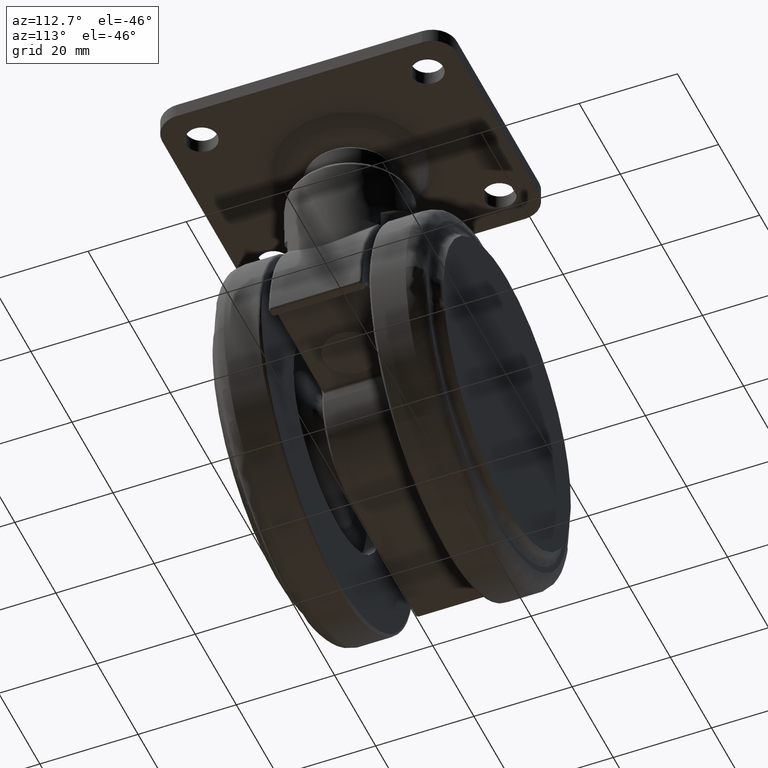
[diagram: clean part render]
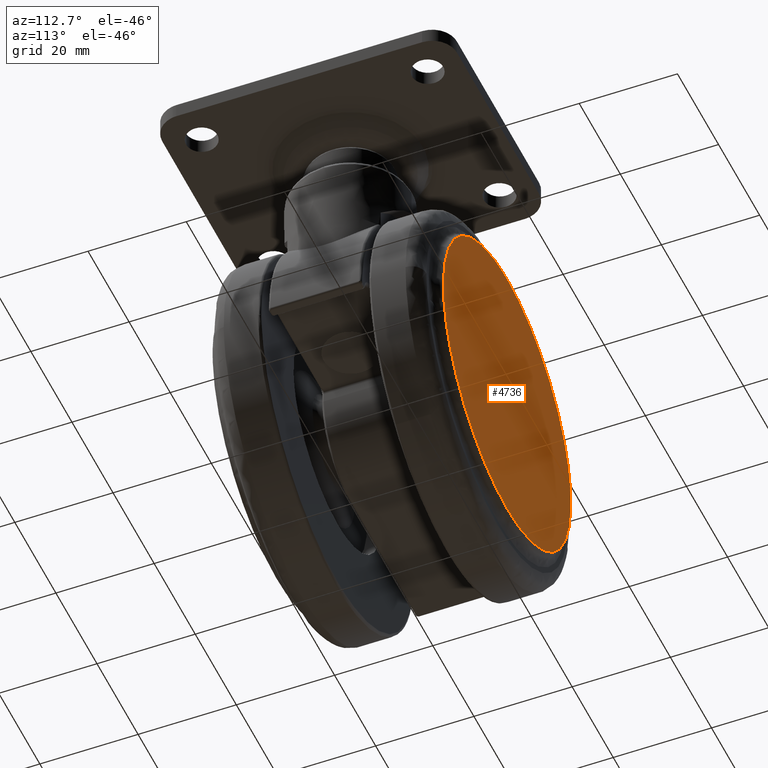
[diagram: same view with one face highlighted and labeled with its STEP entity id]
A machine part, auxiliary view. The second image highlights one B-rep face of the part: STEP entity #4736.
In plain terms, the highlighted face is a freeform B-spline surface patch.
Its self-contained STEP definition (entity closure, byte-faithful):
#4596=CARTESIAN_POINT('',(-50.648204086884860,23.499999999828798,-35.843006737218879));
#4597=VERTEX_POINT('',#4596);
#4611=CARTESIAN_POINT('',(-20.0,23.500000000000021,-71.500000000000185));
#4612=VERTEX_POINT('',#4611);
#4613=CARTESIAN_POINT('',(-50.648204086884860,23.499999999828798,-35.843006737218879));
#4614=CARTESIAN_POINT('',(-51.000000000014424,23.499999999834358,-38.158215786094125));
#4615=CARTESIAN_POINT('',(-51.000000000013870,23.499999999840821,-40.499999999997897));
#4616=CARTESIAN_POINT('',(-51.000000000006409,23.499999999926438,-71.499999999999133));
#4617=CARTESIAN_POINT('',(-20.0,23.500000000000021,-71.500000000000185));
#4625=(BOUNDED_CURVE()B_SPLINE_CURVE(2,(#4613,#4614,#4615,#4616,#4617),.UNSPECIFIED.,.F.,.U.)B_SPLINE_CURVE_WITH_KNOTS((3,2,3),(0.724102415376342,0.750000000000000,1.0),.UNSPECIFIED.)CURVE()GEOMETRIC_REPRESENTATION_ITEM()RATIONAL_B_SPLINE_CURVE((0.945604234434206,0.969659092320332,1.0,0.707106781186548,1.0))REPRESENTATION_ITEM(''));
#4626=EDGE_CURVE('',#4597,#4612,#4625,.T.);
#4628=CARTESIAN_POINT('',(10.648204086884849,23.499999999828798,-45.156993262781107));
#4629=VERTEX_POINT('',#4628);
#4630=CARTESIAN_POINT('',(-20.0,23.500000000000021,-71.500000000000185));
#4631=CARTESIAN_POINT('',(6.645385371991139,23.499999999914404,-71.500000000001222));
#4632=CARTESIAN_POINT('',(10.648204086884849,23.499999999828798,-45.156993262781114));
#4640=(BOUNDED_CURVE()B_SPLINE_CURVE(2,(#4630,#4631,#4632),.UNSPECIFIED.,.F.,.U.)B_SPLINE_CURVE_WITH_KNOTS((3,3),(0.0,0.224102415376342),.UNSPECIFIED.)CURVE()GEOMETRIC_REPRESENTATION_ITEM()RATIONAL_B_SPLINE_CURVE((1.0,0.737447688866216,0.945604234434206))REPRESENTATION_ITEM(''));
#4641=EDGE_CURVE('',#4612,#4629,#4640,.T.);
#4690=CARTESIAN_POINT('',(-20.0,23.500000000000000,-9.500000000000002));
#4691=VERTEX_POINT('',#4690);
#4692=CARTESIAN_POINT('',(10.648204086884849,23.499999999828798,-45.156993262781114));
#4693=CARTESIAN_POINT('',(11.000000000014410,23.499999999834348,-42.841784213905868));
#4694=CARTESIAN_POINT('',(11.000000000013850,23.499999999840821,-40.500000000002110));
#4695=CARTESIAN_POINT('',(11.000000000006400,23.499999999926420,-9.500000000000979));
#4696=CARTESIAN_POINT('',(-20.0,23.500000000000000,-9.500000000000002));
#4704=(BOUNDED_CURVE()B_SPLINE_CURVE(2,(#4692,#4693,#4694,#4695,#4696),.UNSPECIFIED.,.F.,.U.)B_SPLINE_CURVE_WITH_KNOTS((3,2,3),(0.224102415376342,0.250000000000000,0.500000000000000),.UNSPECIFIED.)CURVE()GEOMETRIC_REPRESENTATION_ITEM()RATIONAL_B_SPLINE_CURVE((0.945604234434206,0.969659092320332,1.0,0.707106781186548,1.0))REPRESENTATION_ITEM(''));
#4705=EDGE_CURVE('',#4629,#4691,#4704,.T.);
#4707=CARTESIAN_POINT('',(-20.0,23.500000000000000,-9.500000000000002));
#4708=CARTESIAN_POINT('',(-46.645385371991154,23.499999999914404,-9.499999999998869));
#4709=CARTESIAN_POINT('',(-50.648204086884860,23.499999999828798,-35.843006737218879));
#4717=(BOUNDED_CURVE()B_SPLINE_CURVE(2,(#4707,#4708,#4709),.UNSPECIFIED.,.F.,.U.)B_SPLINE_CURVE_WITH_KNOTS((3,3),(0.500000000000000,0.724102415376342),.UNSPECIFIED.)CURVE()GEOMETRIC_REPRESENTATION_ITEM()RATIONAL_B_SPLINE_CURVE((1.0,0.737447688866216,0.945604234434206))REPRESENTATION_ITEM(''));
#4718=EDGE_CURVE('',#4691,#4597,#4717,.T.);
#4725=CARTESIAN_POINT('',(14.089120613112010,23.500000000000000,-6.403100120168022));
#4726=CARTESIAN_POINT('',(14.089120613112010,23.500000000000000,-74.596901542801746));
#4727=CARTESIAN_POINT('',(-54.089122829898983,23.500000000000000,-6.403100120168022));
#4728=CARTESIAN_POINT('',(-54.089122829898983,23.500000000000000,-74.596901542801746));
#4729=B_SPLINE_SURFACE_WITH_KNOTS('',1,1,((#4725,#4727),(#4726,#4728)),.UNSPECIFIED.,.F.,.F.,.U.,(2,2),(2,2),(0.0,68.193801422633726),(0.0,68.178243443010984),.UNSPECIFIED.);
#4730=ORIENTED_EDGE('',*,*,#4626,.F.);
#4731=ORIENTED_EDGE('',*,*,#4718,.F.);
#4732=ORIENTED_EDGE('',*,*,#4705,.F.);
#4733=ORIENTED_EDGE('',*,*,#4641,.F.);
#4734=EDGE_LOOP('',(#4730,#4731,#4732,#4733));
#4735=FACE_OUTER_BOUND('',#4734,.T.);
#4736=ADVANCED_FACE('',(#4735),#4729,.T.);